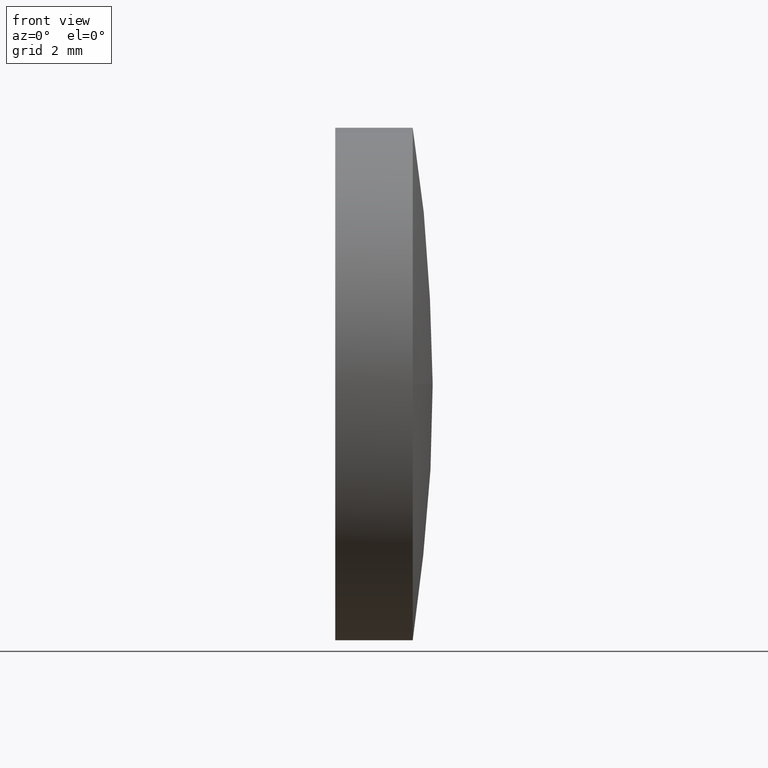
[diagram: clean part render]
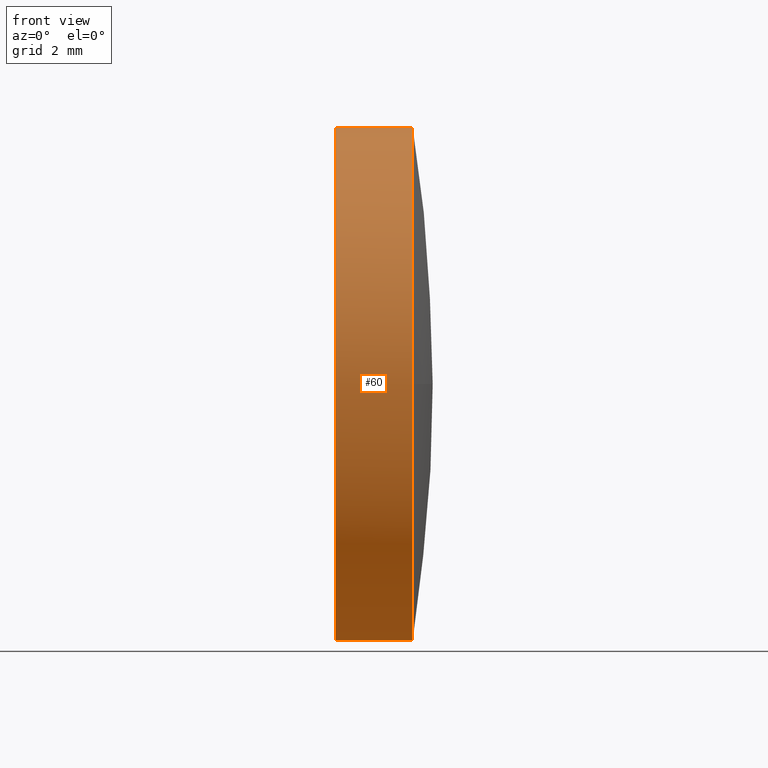
[diagram: same view with one face highlighted and labeled with its STEP entity id]
A machine part, front view. The second image highlights one B-rep face of the part: STEP entity #60.
In plain terms, the highlighted cylindrical surface (partial cylindrical patch) has radius 5 mm, axis along (-1, -0, -0).
Its self-contained STEP definition (entity closure, byte-faithful):
#2 = EDGE_CURVE ( 'NONE', #117, #3, #177, .T. ) ;
#3 = VERTEX_POINT ( 'NONE', #33 ) ;
#4 = LINE ( 'NONE', #141, #72 ) ;
#13 = ORIENTED_EDGE ( 'NONE', *, *, #63, .T. ) ;
#16 = AXIS2_PLACEMENT_3D ( 'NONE', #166, #139, #106 ) ;
#19 = CARTESIAN_POINT ( 'NONE',  ( 596.9777683495610700, 196.2413410998470100, -5.000000000000004400 ) ) ;
#21 = DIRECTION ( 'NONE',  ( -1.000000000000000000, -0.0000000000000000000, -0.0000000000000000000 ) ) ;
#33 = CARTESIAN_POINT ( 'NONE',  ( 596.9777683495610700, 196.2413410998470100, 5.000000000000004400 ) ) ;
#36 = DIRECTION ( 'NONE',  ( -1.000000000000000000, -0.0000000000000000000, -0.0000000000000000000 ) ) ;
#40 = ORIENTED_EDGE ( 'NONE', *, *, #103, .F. ) ;
#51 = ORIENTED_EDGE ( 'NONE', *, *, #67, .F. ) ;
#55 = VERTEX_POINT ( 'NONE', #108 ) ;
#60 = ADVANCED_FACE ( 'NONE', ( #115 ), #93, .T. ) ;
#63 = EDGE_CURVE ( 'NONE', #3, #159, #4, .T. ) ;
#67 = EDGE_CURVE ( 'NONE', #91, #55, #112, .T. ) ;
#69 = CARTESIAN_POINT ( 'NONE',  ( 595.4677683495610800, 196.2413410998470100, 5.000000000000004400 ) ) ;
#70 = EDGE_LOOP ( 'NONE', ( #51, #104, #144, #13, #40 ) ) ;
#72 = VECTOR ( 'NONE', #21, 1000.000000000000000 ) ;
#74 = CIRCLE ( 'NONE', #153, 5.000000000000004400 ) ;
#91 = VERTEX_POINT ( 'NONE', #19 ) ;
#93 = CYLINDRICAL_SURFACE ( 'NONE', #176, 5.000000000000004400 ) ;
#95 = DIRECTION ( 'NONE',  ( -1.000000000000000000, -0.0000000000000000000, -0.0000000000000000000 ) ) ;
#96 = CARTESIAN_POINT ( 'NONE',  ( 594.5262178777866200, 196.2413410998470100, -5.000000000000004400 ) ) ;
#97 = DIRECTION ( 'NONE',  ( 0.0000000000000000000, 0.0000000000000000000, 1.000000000000000000 ) ) ;
#100 = VECTOR ( 'NONE', #36, 1000.000000000000000 ) ;
#103 = EDGE_CURVE ( 'NONE', #55, #159, #136, .T. ) ;
#104 = ORIENTED_EDGE ( 'NONE', *, *, #146, .T. ) ;
#106 = DIRECTION ( 'NONE',  ( 0.0000000000000000000, 0.0000000000000000000, 1.000000000000000000 ) ) ;
#108 = CARTESIAN_POINT ( 'NONE',  ( 595.4677683495610800, 196.2413410998470100, -5.000000000000004400 ) ) ;
#112 = LINE ( 'NONE', #96, #100 ) ;
#113 = CARTESIAN_POINT ( 'NONE',  ( 596.9777683495610700, 196.2413410998470100, 0.0000000000000000000 ) ) ;
#115 = FACE_OUTER_BOUND ( 'NONE', #70, .T. ) ;
#117 = VERTEX_POINT ( 'NONE', #171 ) ;
#122 = DIRECTION ( 'NONE',  ( 0.0000000000000000000, 0.0000000000000000000, 1.000000000000000000 ) ) ;
#136 = CIRCLE ( 'NONE', #16, 5.000000000000004400 ) ;
#138 = DIRECTION ( 'NONE',  ( 0.0000000000000000000, 0.0000000000000000000, 1.000000000000000000 ) ) ;
#139 = DIRECTION ( 'NONE',  ( -1.000000000000000000, -0.0000000000000000000, -0.0000000000000000000 ) ) ;
#141 = CARTESIAN_POINT ( 'NONE',  ( 594.5262178777866200, 196.2413410998470100, 5.000000000000004400 ) ) ;
#144 = ORIENTED_EDGE ( 'NONE', *, *, #2, .T. ) ;
#146 = EDGE_CURVE ( 'NONE', #91, #117, #74, .T. ) ;
#149 = AXIS2_PLACEMENT_3D ( 'NONE', #156, #155, #122 ) ;
#153 = AXIS2_PLACEMENT_3D ( 'NONE', #113, #184, #97 ) ;
#155 = DIRECTION ( 'NONE',  ( -1.000000000000000000, -0.0000000000000000000, -0.0000000000000000000 ) ) ;
#156 = CARTESIAN_POINT ( 'NONE',  ( 596.9777683495610700, 196.2413410998470100, 0.0000000000000000000 ) ) ;
#159 = VERTEX_POINT ( 'NONE', #69 ) ;
#166 = CARTESIAN_POINT ( 'NONE',  ( 595.4677683495610800, 196.2413410998470100, 0.0000000000000000000 ) ) ;
#171 = CARTESIAN_POINT ( 'NONE',  ( 596.9777683495610700, 191.2413410998472900, 0.0000000000000000000 ) ) ;
#176 = AXIS2_PLACEMENT_3D ( 'NONE', #183, #95, #138 ) ;
#177 = CIRCLE ( 'NONE', #149, 5.000000000000004400 ) ;
#183 = CARTESIAN_POINT ( 'NONE',  ( 594.5262178777866200, 196.2413410998470100, 0.0000000000000000000 ) ) ;
#184 = DIRECTION ( 'NONE',  ( -1.000000000000000000, -0.0000000000000000000, -0.0000000000000000000 ) ) ;